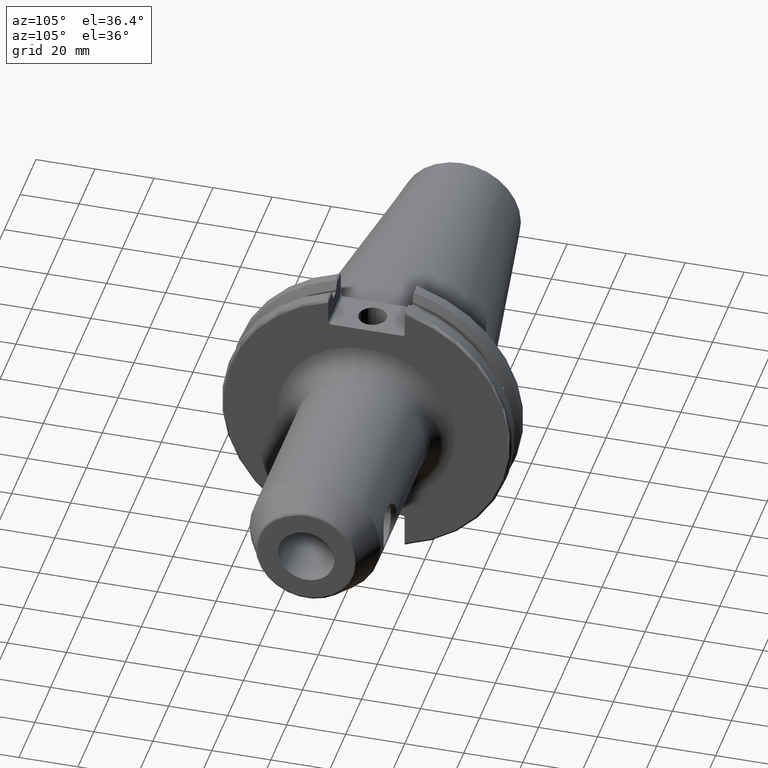
[diagram: clean part render]
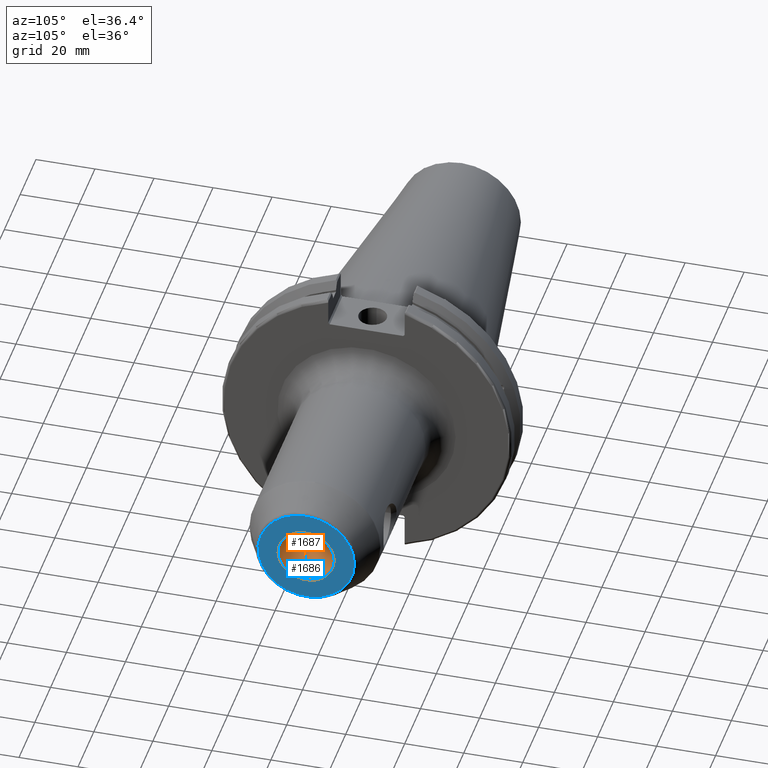
[diagram: same view with the hole feature highlighted: cylindrical wall and planar end face, labeled with their STEP entity ids]
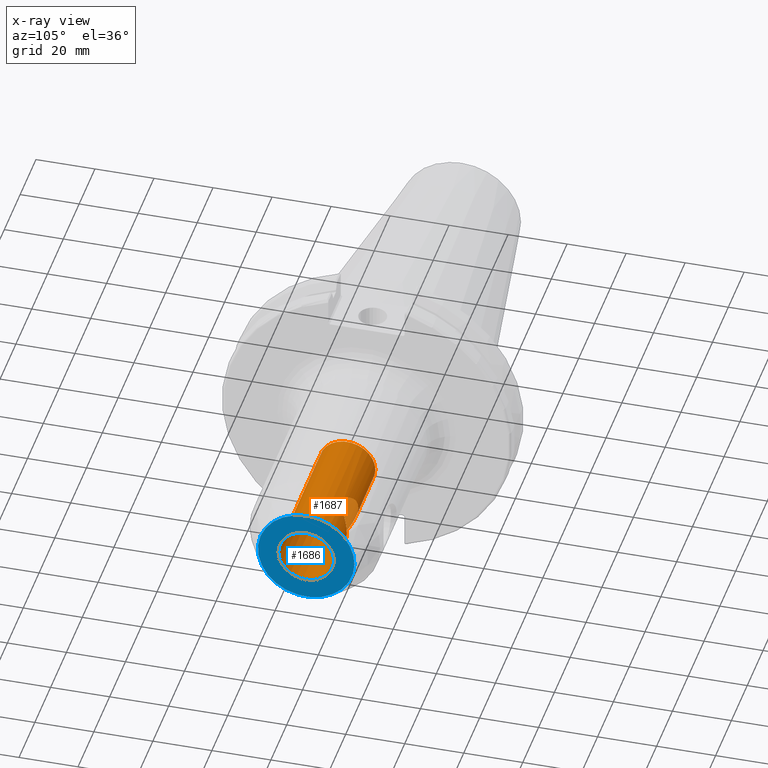
[diagram: x-ray of the same camera — body ghosted, the hole faces saturated]
A machine part, auxiliary view. The highlighted faces form one hole feature of diameter 19.05 mm: the cylindrical wall (entity #1687, orange) and its adjacent planar end face (entity #1686, blue) — they share a circular edge in the B-rep.
The next image is the same camera in x-ray (body ghosted, the hole faces saturated) — the bore reads through the body.
Wall:
#60=FACE_BOUND('',#544,.T.);
#130=LINE('',#2711,#224);
#224=VECTOR('',#2079,9.525);
#328=CIRCLE('',#1820,9.525);
#329=CIRCLE('',#1821,9.525);
#330=CIRCLE('',#1823,9.525);
#331=CIRCLE('',#1824,9.525);
#415=CYLINDRICAL_SURFACE('',#1822,9.525);
#451=FACE_OUTER_BOUND('',#543,.T.);
#543=EDGE_LOOP('',(#1223,#1224,#1225,#1226,#1227,#1228));
#544=EDGE_LOOP('',(#1229,#1230));
#641=B_SPLINE_CURVE_WITH_KNOTS('',3,(#2547,#2548,#2549,#2550,#2551,#2552,
#2553,#2554,#2555,#2556,#2557,#2558,#2559,#2560,#2561,#2562,#2563,#2564,
#2565,#2566,#2567,#2568,#2569,#2570,#2571,#2572,#2573,#2574,#2575,#2576,
#2577,#2578),.UNSPECIFIED.,.F.,.F.,(4,2,2,2,2,2,2,2,2,2,2,2,2,2,2,4),(0.,
0.144698250998677,0.289396501997354,0.578793003994707,0.861943035234953,
1.1450930664752,1.42824309771544,1.71139312895569,2.00078963095304,2.14548788195172,
2.2901861329504,2.43488438394907,2.57958263494775,2.86897913694511,3.15212916818535,
3.4352791994256),.UNSPECIFIED.);
#642=B_SPLINE_CURVE_WITH_KNOTS('',3,(#2579,#2580,#2581,#2582,#2583,#2584,
#2585,#2586,#2587,#2588,#2589,#2590),.UNSPECIFIED.,.F.,.F.,(4,2,2,2,2,4),
(3.4352791994256,3.71842923066584,4.00157926190609,4.29097576390344,4.43567401490212,
4.58037226590079),.UNSPECIFIED.);
#688=VERTEX_POINT('',#2544);
#689=VERTEX_POINT('',#2546);
#722=VERTEX_POINT('',#2705);
#723=VERTEX_POINT('',#2706);
#724=VERTEX_POINT('',#2710);
#725=VERTEX_POINT('',#2712);
#880=EDGE_CURVE('',#689,#688,#641,.T.);
#881=EDGE_CURVE('',#688,#689,#642,.T.);
#921=EDGE_CURVE('',#722,#723,#328,.T.);
#922=EDGE_CURVE('',#723,#722,#329,.T.);
#923=EDGE_CURVE('',#723,#724,#130,.T.);
#924=EDGE_CURVE('',#725,#724,#330,.T.);
#925=EDGE_CURVE('',#724,#725,#331,.T.);
#1223=ORIENTED_EDGE('',*,*,#921,.T.);
#1224=ORIENTED_EDGE('',*,*,#923,.T.);
#1225=ORIENTED_EDGE('',*,*,#924,.F.);
#1226=ORIENTED_EDGE('',*,*,#925,.F.);
#1227=ORIENTED_EDGE('',*,*,#923,.F.);
#1228=ORIENTED_EDGE('',*,*,#922,.T.);
#1229=ORIENTED_EDGE('',*,*,#880,.T.);
#1230=ORIENTED_EDGE('',*,*,#881,.T.);
#1687=ADVANCED_FACE('',(#451,#60),#415,.F.);
#1820=AXIS2_PLACEMENT_3D('',#2707,#2073,#2074);
#1821=AXIS2_PLACEMENT_3D('',#2708,#2075,#2076);
#1822=AXIS2_PLACEMENT_3D('',#2709,#2077,#2078);
#1823=AXIS2_PLACEMENT_3D('',#2713,#2080,#2081);
#1824=AXIS2_PLACEMENT_3D('',#2714,#2082,#2083);
#2073=DIRECTION('center_axis',(1.,0.,0.));
#2074=DIRECTION('ref_axis',(0.,0.,-1.));
#2075=DIRECTION('center_axis',(1.,0.,0.));
#2076=DIRECTION('ref_axis',(0.,0.,-1.));
#2077=DIRECTION('center_axis',(1.,0.,0.));
#2078=DIRECTION('ref_axis',(0.,1.,0.));
#2079=DIRECTION('',(-1.,0.,0.));
#2080=DIRECTION('center_axis',(1.,0.,0.));
#2081=DIRECTION('ref_axis',(0.,0.,-1.));
#2082=DIRECTION('center_axis',(1.,0.,0.));
#2083=DIRECTION('ref_axis',(0.,0.,-1.));
#2544=CARTESIAN_POINT('',(65.0245,9.525,9.9448416767667E-16));
#2546=CARTESIAN_POINT('',(72.2,6.26401027697114,7.1755));
#2547=CARTESIAN_POINT('Ctrl Pts',(72.2,6.26401027697114,7.1755));
#2548=CARTESIAN_POINT('Ctrl Pts',(72.6823275033289,6.26401027697114,7.1755));
#2549=CARTESIAN_POINT('Ctrl Pts',(73.1661182135581,6.32143007161541,7.12639516897825));
#2550=CARTESIAN_POINT('Ctrl Pts',(74.1080798225057,6.53206413620659,6.93383906269396));
#2551=CARTESIAN_POINT('Ctrl Pts',(74.5664838378561,6.68433612256235,6.79049865656369));
#2552=CARTESIAN_POINT('Ctrl Pts',(75.8716722290303,7.21720628066741,6.23698013972661));
#2553=CARTESIAN_POINT('Ctrl Pts',(76.6506653156914,7.66888180360497,5.69702410111674));
#2554=CARTESIAN_POINT('Ctrl Pts',(77.8835731028284,8.4449004362381,4.46411631397973));
#2555=CARTESIAN_POINT('Ctrl Pts',(78.431535212332,8.83197757623815,3.68359990675617));
#2556=CARTESIAN_POINT('Ctrl Pts',(79.1783700807261,9.37387029886955,1.92439466781674));
#2557=CARTESIAN_POINT('Ctrl Pts',(79.3755,9.525,0.943833437467483));
#2558=CARTESIAN_POINT('Ctrl Pts',(79.3755,9.525,-0.943833437467487));
#2559=CARTESIAN_POINT('Ctrl Pts',(79.1783700807261,9.37387029886955,-1.92439466781675));
#2560=CARTESIAN_POINT('Ctrl Pts',(78.431535212332,8.83197757623815,-3.68359990675618));
#2561=CARTESIAN_POINT('Ctrl Pts',(77.8835731028284,8.4449004362381,-4.46411631397974));
#2562=CARTESIAN_POINT('Ctrl Pts',(76.6506653156914,7.66888180360497,-5.69702410111674));
#2563=CARTESIAN_POINT('Ctrl Pts',(75.8716722290303,7.21720628066742,-6.2369801397266));
#2564=CARTESIAN_POINT('Ctrl Pts',(74.5664838378561,6.68433612256236,-6.79049865656368));
#2565=CARTESIAN_POINT('Ctrl Pts',(74.1080798225057,6.53206413620659,-6.93383906269396));
#2566=CARTESIAN_POINT('Ctrl Pts',(73.1661182135581,6.32143007161541,-7.12639516897825));
#2567=CARTESIAN_POINT('Ctrl Pts',(72.6823275033289,6.26401027697114,-7.1755));
#2568=CARTESIAN_POINT('Ctrl Pts',(71.7176724966711,6.26401027697114,-7.1755));
#2569=CARTESIAN_POINT('Ctrl Pts',(71.2338817864419,6.3214300716154,-7.12639516897826));
#2570=CARTESIAN_POINT('Ctrl Pts',(70.2919201774943,6.53206413620659,-6.93383906269396));
#2571=CARTESIAN_POINT('Ctrl Pts',(69.8335161621439,6.68433612256236,-6.79049865656369));
#2572=CARTESIAN_POINT('Ctrl Pts',(68.5283277709697,7.21720628066741,-6.2369801397266));
#2573=CARTESIAN_POINT('Ctrl Pts',(67.7493346843086,7.66888180360497,-5.69702410111673));
#2574=CARTESIAN_POINT('Ctrl Pts',(66.5164268971716,8.4449004362381,-4.46411631397973));
#2575=CARTESIAN_POINT('Ctrl Pts',(65.9684647876679,8.83197757623815,-3.68359990675617));
#2576=CARTESIAN_POINT('Ctrl Pts',(65.2216299192739,9.37387029886955,-1.92439466781674));
#2577=CARTESIAN_POINT('Ctrl Pts',(65.0245,9.525,-0.943833437467482));
#2578=CARTESIAN_POINT('Ctrl Pts',(65.0245,9.525,-5.55111512312578E-16));
#2579=CARTESIAN_POINT('Ctrl Pts',(65.0245,9.525,1.11022302462516E-15));
#2580=CARTESIAN_POINT('Ctrl Pts',(65.0245,9.525,0.943833437467486));
#2581=CARTESIAN_POINT('Ctrl Pts',(65.2216299192739,9.37387029886955,1.92439466781675));
#2582=CARTESIAN_POINT('Ctrl Pts',(65.968464787668,8.83197757623815,3.68359990675618));
#2583=CARTESIAN_POINT('Ctrl Pts',(66.5164268971716,8.4449004362381,4.46411631397973));
#2584=CARTESIAN_POINT('Ctrl Pts',(67.7493346843086,7.66888180360497,5.69702410111673));
#2585=CARTESIAN_POINT('Ctrl Pts',(68.5283277709697,7.21720628066741,6.2369801397266));
#2586=CARTESIAN_POINT('Ctrl Pts',(69.8335161621439,6.68433612256235,6.79049865656369));
#2587=CARTESIAN_POINT('Ctrl Pts',(70.2919201774943,6.53206413620659,6.93383906269396));
#2588=CARTESIAN_POINT('Ctrl Pts',(71.2338817864419,6.3214300716154,7.12639516897825));
#2589=CARTESIAN_POINT('Ctrl Pts',(71.7176724966711,6.26401027697114,7.1755));
#2590=CARTESIAN_POINT('Ctrl Pts',(72.2,6.26401027697114,7.1755));
#2705=CARTESIAN_POINT('',(95.3,9.525,0.));
#2706=CARTESIAN_POINT('',(95.3,-9.525,-1.16647607618785E-15));
#2707=CARTESIAN_POINT('Origin',(95.3,0.,0.));
#2708=CARTESIAN_POINT('Origin',(95.3,0.,0.));
#2709=CARTESIAN_POINT('Origin',(69.3,0.,0.));
#2710=CARTESIAN_POINT('',(43.3,-9.525,-1.16647607618785E-15));
#2711=CARTESIAN_POINT('',(69.3,-9.525,-1.16647607618785E-15));
#2712=CARTESIAN_POINT('',(43.3,9.525,0.));
#2713=CARTESIAN_POINT('Origin',(43.3,0.,0.));
#2714=CARTESIAN_POINT('Origin',(43.3,0.,0.));
End face:
#59=FACE_BOUND('',#542,.T.);
#80=PLANE('',#1819);
#325=CIRCLE('',#1816,16.3629297391925);
#327=CIRCLE('',#1818,16.3629297391925);
#328=CIRCLE('',#1820,9.525);
#329=CIRCLE('',#1821,9.525);
#450=FACE_OUTER_BOUND('',#541,.T.);
#541=EDGE_LOOP('',(#1219,#1220));
#542=EDGE_LOOP('',(#1221,#1222));
#720=VERTEX_POINT('',#2699);
#721=VERTEX_POINT('',#2700);
#722=VERTEX_POINT('',#2705);
#723=VERTEX_POINT('',#2706);
#918=EDGE_CURVE('',#720,#721,#325,.T.);
#920=EDGE_CURVE('',#721,#720,#327,.T.);
#921=EDGE_CURVE('',#722,#723,#328,.T.);
#922=EDGE_CURVE('',#723,#722,#329,.T.);
#1219=ORIENTED_EDGE('',*,*,#918,.F.);
#1220=ORIENTED_EDGE('',*,*,#920,.F.);
#1221=ORIENTED_EDGE('',*,*,#921,.F.);
#1222=ORIENTED_EDGE('',*,*,#922,.F.);
#1686=ADVANCED_FACE('',(#450,#59),#80,.T.);
#1816=AXIS2_PLACEMENT_3D('',#2701,#2065,#2066);
#1818=AXIS2_PLACEMENT_3D('',#2703,#2069,#2070);
#1819=AXIS2_PLACEMENT_3D('',#2704,#2071,#2072);
#1820=AXIS2_PLACEMENT_3D('',#2707,#2073,#2074);
#1821=AXIS2_PLACEMENT_3D('',#2708,#2075,#2076);
#2065=DIRECTION('center_axis',(-1.,0.,0.));
#2066=DIRECTION('ref_axis',(0.,-1.,1.83697019872103E-16));
#2069=DIRECTION('center_axis',(-1.,0.,0.));
#2070=DIRECTION('ref_axis',(0.,-1.,1.83697019872103E-16));
#2071=DIRECTION('center_axis',(1.,0.,0.));
#2072=DIRECTION('ref_axis',(0.,0.,-1.));
#2073=DIRECTION('center_axis',(1.,0.,0.));
#2074=DIRECTION('ref_axis',(0.,0.,-1.));
#2075=DIRECTION('center_axis',(1.,0.,0.));
#2076=DIRECTION('ref_axis',(0.,0.,-1.));
#2699=CARTESIAN_POINT('',(95.3,16.3629297391925,-5.00970238244378E-15));
#2700=CARTESIAN_POINT('',(95.3,-2.00388095297751E-15,16.3629297391925));
#2701=CARTESIAN_POINT('Origin',(95.3,0.,0.));
#2703=CARTESIAN_POINT('Origin',(95.3,0.,0.));
#2704=CARTESIAN_POINT('Origin',(95.3,9.525,0.));
#2705=CARTESIAN_POINT('',(95.3,9.525,0.));
#2706=CARTESIAN_POINT('',(95.3,-9.525,-1.16647607618785E-15));
#2707=CARTESIAN_POINT('Origin',(95.3,0.,0.));
#2708=CARTESIAN_POINT('Origin',(95.3,0.,0.));